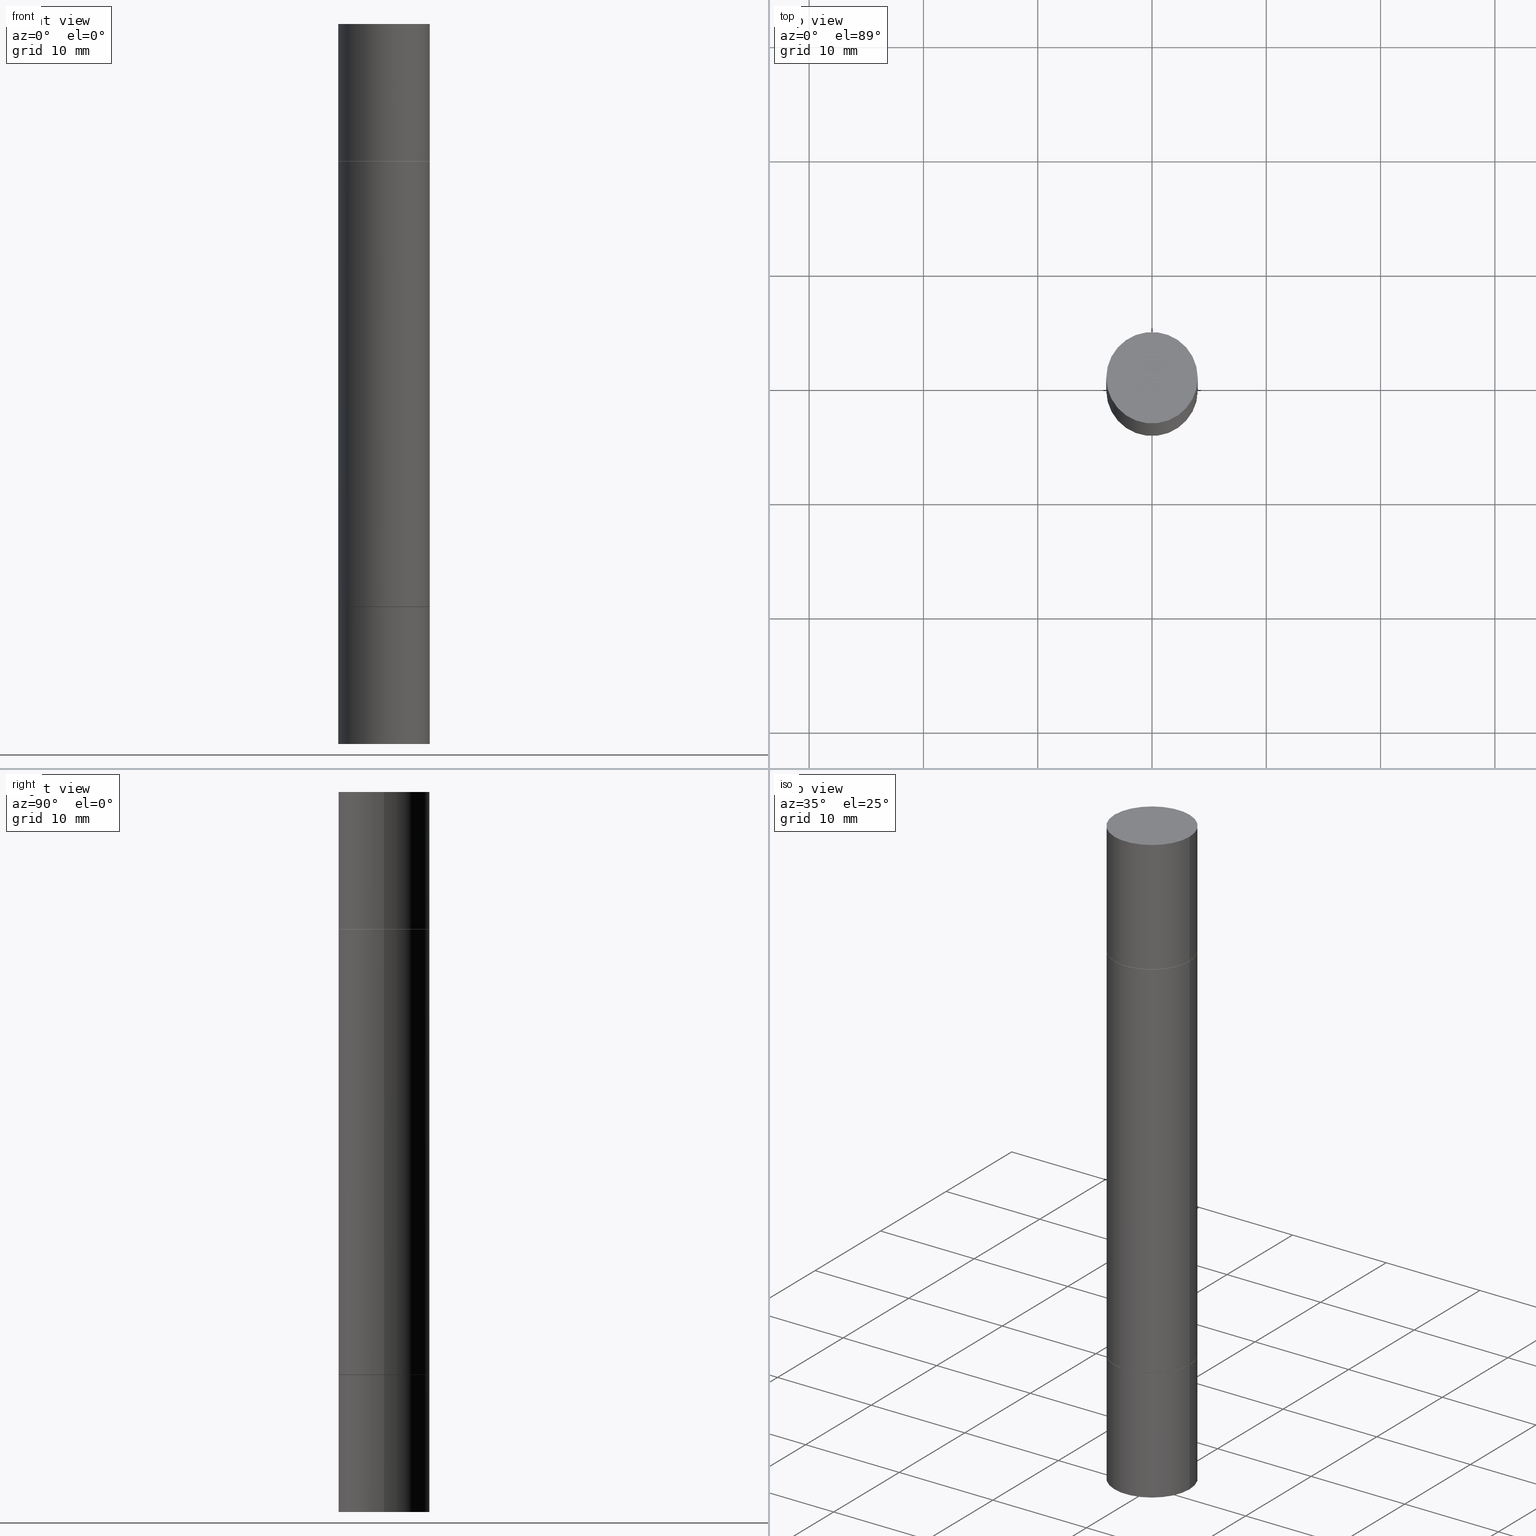
[diagram: canonical four-view strip — front | top / right | iso, engineering-drawing reading convention]
A machine part, canonical four-view strip (front | top / right | iso — engineering-drawing reading convention). The complete STEP part file that produces these views, byte-faithful:
ISO-10303-21;
HEADER;
FILE_DESCRIPTION (( 'STEP AP203' ),
    '1' );
FILE_NAME ('41549.STEP',
    '2024-03-04T15:46:09',
    ( '' ),
    ( '' ),
    'SwSTEP 2.0',
    'SolidWorks 2023',
    '' );
FILE_SCHEMA (( 'CONFIG_CONTROL_DESIGN' ));
ENDSEC;

DATA;
#1 = DIRECTION ( 'NONE',  ( 1.000000000000000000, -6.982962677686268288E-15, 0.000000000000000000 ) ) ;
#2 = MANIFOLD_SOLID_BREP ( 'Combine1', #70 ) ;
#3 = AXIS2_PLACEMENT_3D ( 'NONE', #26, #36, #31 ) ;
#4 = ORIENTED_EDGE ( 'NONE', *, *, #9, .T. ) ;
#5 = CARTESIAN_POINT ( 'NONE',  ( -0.1575000000000000011, -6.716128463675745525E-15, -2.007900000000000240 ) ) ;
#6 = ORIENTED_EDGE ( 'NONE', *, *, #613, .F. ) ;
#7 = DIRECTION ( 'NONE',  ( -2.445468806185136877E-29, -3.492890411551753071E-15, -1.000000000000000000 ) ) ;
#8 = CYLINDRICAL_SURFACE ( 'NONE', #338, 0.1575000000000000011 ) ;
#9 = EDGE_CURVE ( 'NONE', #265, #199, #38, .T. ) ;
#10 = CIRCLE ( 'NONE', #260, 0.1575000000000000011 ) ;
#11 = EDGE_CURVE ( 'NONE', #631, #280, #253, .T. ) ;
#12 = DIRECTION ( 'NONE',  ( -2.445468806185136597E-29, 3.491481338843145583E-15, 1.000000000000000000 ) ) ;
#13 = EDGE_CURVE ( 'NONE', #483, #509, #336, .T. ) ;
#14 = DIRECTION ( 'NONE',  ( -2.445468806185136597E-29, -3.492890411551752677E-15, -1.000000000000000000 ) ) ;
#15 = ORIENTED_EDGE ( 'NONE', *, *, #572, .F. ) ;
#16 = AXIS2_PLACEMENT_3D ( 'NONE', #353, #95, #575 ) ;
#17 = DIRECTION ( 'NONE',  ( -1.000000000000000000, 6.982962677686265922E-15, -9.839502134516470631E-33 ) ) ;
#18 = CARTESIAN_POINT ( 'NONE',  ( 0.000000000000000000, -8.661668626252231138E-15, -2.480299999999999727 ) ) ;
#19 = EDGE_CURVE ( 'NONE', #199, #499, #577, .T. ) ;
#20 = DIRECTION ( 'NONE',  ( -2.445468806185136877E-29, -3.492890411551753071E-15, -1.000000000000000000 ) ) ;
#21 = ORIENTED_EDGE ( 'NONE', *, *, #522, .T. ) ;
#22 = LENGTH_MEASURE_WITH_UNIT ( LENGTH_MEASURE( 0.02539999999999999897 ), #314 );
#23 = VERTEX_POINT ( 'NONE', #430 ) ;
#24 = DIRECTION ( 'NONE',  ( 1.000000000000000000, -6.982962677686267499E-15, 0.000000000000000000 ) ) ;
#25 = EDGE_CURVE ( 'NONE', #499, #199, #623, .T. ) ;
#26 = CARTESIAN_POINT ( 'NONE',  ( 1.099816621735647434E-15, 0.1574999999999999456, 0.000000000000000000 ) ) ;
#27 = ORIENTED_EDGE ( 'NONE', *, *, #249, .F. ) ;
#28 = ORIENTED_EDGE ( 'NONE', *, *, #328, .F. ) ;
#29 = DIRECTION ( 'NONE',  ( 2.438088387897960049E-29, -3.491481338843145188E-15, -1.000000000000000000 ) ) ;
#30 = CONICAL_SURFACE ( 'NONE', #16, 0.1565000000000000002, 0.7853981633972775267 ) ;
#31 = DIRECTION ( 'NONE',  ( -1.000000000000000000, 6.982962677686265922E-15, -9.839502134516470631E-33 ) ) ;
#32 = ORIENTED_EDGE ( 'NONE', *, *, #206, .F. ) ;
#33 = CIRCLE ( 'NONE', #71, 0.1575000000000000011 ) ;
#34 = CARTESIAN_POINT ( 'NONE',  ( 4.910256815939136991E-29, -7.010545380263154077E-15, -2.007900000000000240 ) ) ;
#35 = PLANE ( 'NONE',  #350 ) ;
#36 = DIRECTION ( 'NONE',  ( 2.438088387897959769E-29, 3.492890411551753071E-15, 1.000000000000000000 ) ) ;
#37 = EDGE_LOOP ( 'NONE', ( #161, #361 ) ) ;
#38 = LINE ( 'NONE', #171, #470 ) ;
#39 = CARTESIAN_POINT ( 'NONE',  ( -0.1575000000000000011, 2.572551809600735932E-16, -0.4723999999999995980 ) ) ;
#40 = LINE ( 'NONE', #668, #99 ) ;
#41 = ORIENTED_EDGE ( 'NONE', *, *, #212, .F. ) ;
#42 = UNCERTAINTY_MEASURE_WITH_UNIT (LENGTH_MEASURE( 1.000000000000000082E-05 ), #526, 'distance_accuracy_value', 'NONE');
#43 = AXIS2_PLACEMENT_3D ( 'NONE', #76, #87, #603 ) ;
#44 = CARTESIAN_POINT ( 'NONE',  ( 6.065496279980994755E-29, 1.747461519580534218E-18, 5.463695987328526437E-16 ) ) ;
#45 = CALENDAR_DATE ( 2024, 4, 3 ) ;
#46 = CARTESIAN_POINT ( 'NONE',  ( -0.1565000000000000002, -5.746260322462221211E-16, -0.4723999999999993205 ) ) ;
#47 = CARTESIAN_POINT ( 'NONE',  ( -0.1565000000000000002, -5.893247544450374291E-15, -2.007900000000000240 ) ) ;
#48 = DIRECTION ( 'NONE',  ( 1.000000000000000000, -6.982962677686267499E-15, 0.000000000000000000 ) ) ;
#49 = APPROVAL_DATE_TIME ( #146, #494 ) ;
#50 = EDGE_CURVE ( 'NONE', #631, #493, #653, .T. ) ;
#51 = DIRECTION ( 'NONE',  ( -2.445468806185136597E-29, -3.492890411551752677E-15, -1.000000000000000000 ) ) ;
#52 = ORIENTED_EDGE ( 'NONE', *, *, #9, .F. ) ;
#53 = CALENDAR_DATE ( 2024, 4, 3 ) ;
#54 = ADVANCED_FACE ( 'NONE', ( #606 ), #327, .T. ) ;
#55 = AXIS2_PLACEMENT_3D ( 'NONE', #306, #351, #58 ) ;
#56 = AXIS2_PLACEMENT_3D ( 'NONE', #102, #143, #518 ) ;
#57 = EDGE_CURVE ( 'NONE', #650, #499, #126, .T. ) ;
#58 = DIRECTION ( 'NONE',  ( 0.000000000000000000, 1.000000000000000000, -3.469013325287955660E-15 ) ) ;
#59 = CC_DESIGN_PERSON_AND_ORGANIZATION_ASSIGNMENT ( #271, #259, ( #396 ) ) ;
#60 = ORIENTED_EDGE ( 'NONE', *, *, #528, .T. ) ;
#61 = EDGE_LOOP ( 'NONE', ( #32, #369, #658, #52 ) ) ;
#62 = APPLICATION_PROTOCOL_DEFINITION ( 'international standard', 'config_control_design', 1994, #400 ) ;
#63 = ORIENTED_EDGE ( 'NONE', *, *, #170, .T. ) ;
#64 = EDGE_CURVE ( 'NONE', #426, #138, #132, .T. ) ;
#65 = DIRECTION ( 'NONE',  ( 1.000000000000000000, -6.982962677686261977E-15, 0.000000000000000000 ) ) ;
#66 = CARTESIAN_POINT ( 'NONE',  ( 0.1565000000000000002, -2.741127627955367656E-15, -0.4723999999999993205 ) ) ;
#67 = ORIENTED_EDGE ( 'NONE', *, *, #498, .F. ) ;
#68 = DIRECTION ( 'NONE',  ( 1.000000000000000000, 0.000000000000000000, 0.000000000000000000 ) ) ;
#69 = DIRECTION ( 'NONE',  ( -2.445468806185136597E-29, -3.492890411551752677E-15, -1.000000000000000000 ) ) ;
#70 = CLOSED_SHELL ( 'NONE', ( #368, #290, #151, #578, #362, #97, #666, #542 ) ) ;
#71 = AXIS2_PLACEMENT_3D ( 'NONE', #208, #529, #65 ) ;
#72 = COORDINATED_UNIVERSAL_TIME_OFFSET ( 5, 0, .BEHIND. ) ;
#73 = DIRECTION ( 'NONE',  ( 0.7071067811864267805, -7.407546758113824138E-15, -0.7071067811866682540 ) ) ;
#74 = DIRECTION ( 'NONE',  ( 2.438088387897959769E-29, 3.492890411551753071E-15, 1.000000000000000000 ) ) ;
#75 = ORIENTED_EDGE ( 'NONE', *, *, #11, .T. ) ;
#76 = CARTESIAN_POINT ( 'NONE',  ( 4.907811347132950827E-29, -1.651786859309018332E-15, -0.4733999999999996544 ) ) ;
#77 = FACE_OUTER_BOUND ( 'NONE', #174, .T. ) ;
#78 = CARTESIAN_POINT ( 'NONE',  ( 0.1575000000000000011, -2.748110590633054853E-15, -0.4723999999999995980 ) ) ;
#79 = ORIENTED_EDGE ( 'NONE', *, *, #357, .F. ) ;
#80 = ORIENTED_EDGE ( 'NONE', *, *, #160, .F. ) ;
#81 = DIRECTION ( 'NONE',  ( -2.445468806185136597E-29, -3.492890411551752677E-15, -1.000000000000000000 ) ) ;
#82 = VECTOR ( 'NONE', #289, 39.37007874015748143 ) ;
#83 = CIRCLE ( 'NONE', #358, 0.1575000000000000011 ) ;
#84 = LINE ( 'NONE', #130, #82 ) ;
#85 = ORIENTED_EDGE ( 'NONE', *, *, #154, .T. ) ;
#86 = PRODUCT_DEFINITION_FORMATION_WITH_SPECIFIED_SOURCE ( 'ANY', '', #396, .NOT_KNOWN. ) ;
#87 = DIRECTION ( 'NONE',  ( 2.445468806185136597E-29, 3.492890411551752677E-15, 1.000000000000000000 ) ) ;
#88 = CARTESIAN_POINT ( 'NONE',  ( 6.065496279980994755E-29, 1.747461519580534218E-18, 5.463695987328526437E-16 ) ) ;
#89 = DIRECTION ( 'NONE',  ( 1.000000000000000000, -6.982962677686265922E-15, 0.000000000000000000 ) ) ;
#90 = EDGE_LOOP ( 'NONE', ( #28, #574, #63, #270 ) ) ;
#91 = ADVANCED_FACE ( 'NONE', ( #291 ), #236, .T. ) ;
#92 = DIRECTION ( 'NONE',  ( 2.445468806185136597E-29, 3.492890411551752677E-15, 1.000000000000000000 ) ) ;
#93 = FACE_OUTER_BOUND ( 'NONE', #627, .T. ) ;
#94 = AXIS2_PLACEMENT_3D ( 'NONE', #401, #620, #141 ) ;
#95 = DIRECTION ( 'NONE',  ( -2.445468806185136597E-29, -3.492890411551752677E-15, -1.000000000000000000 ) ) ;
#96 = ORIENTED_EDGE ( 'NONE', *, *, #337, .F. ) ;
#97 = ADVANCED_FACE ( 'NONE', ( #112 ), #537, .T. ) ;
#98 = CARTESIAN_POINT ( 'NONE',  ( 0.1575000000000000011, -1.098069160216006353E-15, 5.463695987328526437E-16 ) ) ;
#99 = VECTOR ( 'NONE', #497, 39.37007874015748143 ) ;
#100 = EDGE_LOOP ( 'NONE', ( #131, #334 ) ) ;
#101 = CONICAL_SURFACE ( 'NONE', #466, 0.1565000000000000002, 0.7853981633972775267 ) ;
#102 = CARTESIAN_POINT ( 'NONE',  ( 4.910256815939136991E-29, -1.648293968897466781E-15, -0.4723999999999993205 ) ) ;
#103 = PERSON_AND_ORGANIZATION_ROLE ( 'creator' ) ;
#104 = ORIENTED_EDGE ( 'NONE', *, *, #64, .F. ) ;
#105 = CARTESIAN_POINT ( 'NONE',  ( 4.910256815939136991E-29, -1.648293968897466781E-15, -0.4723999999999993205 ) ) ;
#106 = AXIS2_PLACEMENT_3D ( 'NONE', #117, #489, #543 ) ;
#107 = CONICAL_SURFACE ( 'NONE', #553, 0.1565000000000000002, 0.7853981633972775267 ) ;
#108 = CARTESIAN_POINT ( 'NONE',  ( 0.1565000000000000002, -2.741127627955367656E-15, -0.4723999999999993205 ) ) ;
#109 = LINE ( 'NONE', #412, #588 ) ;
#110 = ORIENTED_EDGE ( 'NONE', *, *, #522, .F. ) ;
#111 = ADVANCED_FACE ( 'NONE', ( #459 ), #200, .T. ) ;
#112 = FACE_OUTER_BOUND ( 'NONE', #90, .T. ) ;
#113 = CLOSED_SHELL ( 'NONE', ( #54, #464, #435, #272, #659, #663 ) ) ;
#114 = AXIS2_PLACEMENT_3D ( 'NONE', #243, #451, #405 ) ;
#115 = CIRCLE ( 'NONE', #56, 0.1565000000000000002 ) ;
#116 = PLANE ( 'NONE',  #610 ) ;
#117 = CARTESIAN_POINT ( 'NONE',  ( 4.907811347132950827E-29, -1.651786859309018332E-15, -0.4733999999999996544 ) ) ;
#118 = CARTESIAN_POINT ( 'NONE',  ( 0.1565000000000000002, -8.103379039321054754E-15, -2.007900000000000240 ) ) ;
#119 = DIRECTION ( 'NONE',  ( 1.000000000000000000, -6.982962677686265922E-15, 9.839502134516470631E-33 ) ) ;
#120 = ORIENTED_EDGE ( 'NONE', *, *, #212, .T. ) ;
#121 = ORIENTED_EDGE ( 'NONE', *, *, #498, .T. ) ;
#122 = CARTESIAN_POINT ( 'NONE',  ( 0.000000000000000000, 0.000000000000000000, -1.240149999999999864 ) ) ;
#123 = EDGE_CURVE ( 'NONE', #592, #201, #156, .T. ) ;
#124 = DIRECTION ( 'NONE',  ( 0.7071067811864267805, -7.407546758113824138E-15, -0.7071067811866682540 ) ) ;
#125 = ORIENTED_EDGE ( 'NONE', *, *, #328, .T. ) ;
#126 = LINE ( 'NONE', #179, #635 ) ;
#127 = CARTESIAN_POINT ( 'NONE',  ( 0.000000000000000000, -8.661668626252231138E-15, -2.480299999999999727 ) ) ;
#128 = CIRCLE ( 'NONE', #465, 0.1574999999999998901 ) ;
#129 = AXIS2_PLACEMENT_3D ( 'NONE', #621, #352, #571 ) ;
#130 = CARTESIAN_POINT ( 'NONE',  ( -0.1575000000000000011, -7.581140191603215359E-15, -2.480299999999999727 ) ) ;
#131 = ORIENTED_EDGE ( 'NONE', *, *, #512, .F. ) ;
#132 = LINE ( 'NONE', #341, #649 ) ;
#133 = FACE_OUTER_BOUND ( 'NONE', #398, .T. ) ;
#134 = DIRECTION ( 'NONE',  ( 1.000000000000000000, -6.982962677686267499E-15, 0.000000000000000000 ) ) ;
#135 = APPROVAL_ROLE ( '' ) ;
#136 = EDGE_CURVE ( 'NONE', #280, #631, #403, .T. ) ;
#137 = CARTESIAN_POINT ( 'NONE',  ( 4.910256815939136991E-29, -1.648293968897466781E-15, -0.4723999999999993205 ) ) ;
#138 = VERTEX_POINT ( 'NONE', #5 ) ;
#139 = COORDINATED_UNIVERSAL_TIME_OFFSET ( 5, 0, .BEHIND. ) ;
#140 = VECTOR ( 'NONE', #348, 39.37007874015748143 ) ;
#141 = DIRECTION ( 'NONE',  ( 1.000000000000000000, -6.982962677686267499E-15, 0.000000000000000000 ) ) ;
#142 = APPROVAL_PERSON_ORGANIZATION ( #316, #238, #641 ) ;
#143 = DIRECTION ( 'NONE',  ( 2.445468806185136597E-29, 3.492890411551752677E-15, 1.000000000000000000 ) ) ;
#144 = VERTEX_POINT ( 'NONE', #294 ) ;
#145 = EDGE_LOOP ( 'NONE', ( #576, #303, #410, #557 ) ) ;
#146 = DATE_AND_TIME ( #45, #184 ) ;
#147 = FACE_OUTER_BOUND ( 'NONE', #61, .T. ) ;
#148 = DIRECTION ( 'NONE',  ( 2.445468806185136597E-29, 3.492890411551752677E-15, 1.000000000000000000 ) ) ;
#149 = AXIS2_PLACEMENT_3D ( 'NONE', #175, #436, #664 ) ;
#150 = AXIS2_PLACEMENT_3D ( 'NONE', #667, #239, #452 ) ;
#151 = ADVANCED_FACE ( 'NONE', ( #147 ), #30, .T. ) ;
#152 = VERTEX_POINT ( 'NONE', #98 ) ;
#153 = COORDINATED_UNIVERSAL_TIME_OFFSET ( 5, 0, .BEHIND. ) ;
#154 = EDGE_CURVE ( 'NONE', #495, #280, #345, .T. ) ;
#155 = APPROVAL_STATUS ( 'not_yet_approved' ) ;
#156 = CIRCLE ( 'NONE', #94, 0.1565000000000000002 ) ;
#157 = AXIS2_PLACEMENT_3D ( 'NONE', #225, #69, #656 ) ;
#158 = EDGE_CURVE ( 'NONE', #493, #444, #283, .T. ) ;
#159 = LINE ( 'NONE', #167, #375 ) ;
#160 = EDGE_CURVE ( 'NONE', #573, #23, #256, .T. ) ;
#161 = ORIENTED_EDGE ( 'NONE', *, *, #445, .T. ) ;
#162 = DIRECTION ( 'NONE',  ( 1.000000000000000000, -6.982962677686265922E-15, 0.000000000000000000 ) ) ;
#163 = CYLINDRICAL_SURFACE ( 'NONE', #267, 0.1574999999999998901 ) ;
#164 = PERSON_AND_ORGANIZATION ( #648, #284 ) ;
#165 = DIRECTION ( 'NONE',  ( 2.445468806185136597E-29, 3.492890411551752677E-15, 1.000000000000000000 ) ) ;
#166 = DIRECTION ( 'NONE',  ( -2.445468806185136597E-29, 3.491481338843145583E-15, 1.000000000000000000 ) ) ;
#167 = CARTESIAN_POINT ( 'NONE',  ( 0.1575000000000000011, -1.099816621735586889E-15, 7.679978421878598033E-30 ) ) ;
#168 = AXIS2_PLACEMENT_3D ( 'NONE', #44, #188, #506 ) ;
#169 = DIRECTION ( 'NONE',  ( 2.445468806185136597E-29, 3.492890411551752677E-15, 1.000000000000000000 ) ) ;
#170 = EDGE_CURVE ( 'NONE', #199, #552, #563, .T. ) ;
#171 = CARTESIAN_POINT ( 'NONE',  ( 0.1565000000000000002, -2.741127627955367656E-15, -0.4723999999999993205 ) ) ;
#172 = CARTESIAN_POINT ( 'NONE',  ( -0.1575000000000000011, -6.716128463675745525E-15, -2.480300000000000171 ) ) ;
#173 = PLANE ( 'NONE',  #3 ) ;
#174 = EDGE_LOOP ( 'NONE', ( #80, #642, #216, #471 ) ) ;
#175 = CARTESIAN_POINT ( 'NONE',  ( 0.000000000000000000, -8.661668626252231138E-15, -2.480299999999999727 ) ) ;
#176 = CC_DESIGN_PERSON_AND_ORGANIZATION_ASSIGNMENT ( #678, #344, ( #323 ) ) ;
#177 = CYLINDRICAL_SURFACE ( 'NONE', #367, 0.1575000000000000011 ) ;
#178 = CARTESIAN_POINT ( 'NONE',  ( 4.910256815939136430E-29, -1.648293968897467768E-15, -0.4723999999999995980 ) ) ;
#179 = CARTESIAN_POINT ( 'NONE',  ( -0.1565000000000000002, -5.746260322462221211E-16, -0.4723999999999993205 ) ) ;
#180 = DIRECTION ( 'NONE',  ( 1.000000000000000000, -6.982962677686268288E-15, 0.000000000000000000 ) ) ;
#181 = CIRCLE ( 'NONE', #296, 0.1575000000000000011 ) ;
#182 = CONICAL_SURFACE ( 'NONE', #196, 0.1565000000000000002, 0.7853981633972775267 ) ;
#183 = DIRECTION ( 'NONE',  ( 1.000000000000000000, -6.982962677686268288E-15, 0.000000000000000000 ) ) ;
#184 = LOCAL_TIME ( 10, 46, 9.000000000000000000, #625 ) ;
#185 = DIRECTION ( 'NONE',  ( 2.438088387897959769E-29, 3.492890411551753071E-15, 1.000000000000000000 ) ) ;
#186 = DIRECTION ( 'NONE',  ( -2.445468806185136597E-29, 3.491481338843145583E-15, 1.000000000000000000 ) ) ;
#187 = PLANE ( 'NONE',  #241 ) ;
#188 = DIRECTION ( 'NONE',  ( 2.445468806185136597E-29, 3.492890411551752677E-15, 1.000000000000000000 ) ) ;
#189 = PERSON_AND_ORGANIZATION_ROLE ( 'creator' ) ;
#190 = DIRECTION ( 'NONE',  ( 1.000000000000000000, -6.982962677686261189E-15, 0.000000000000000000 ) ) ;
#191 = ORIENTED_EDGE ( 'NONE', *, *, #357, .T. ) ;
#192 = DATE_TIME_ROLE ( 'classification_date' ) ;
#193 = CLOSED_SHELL ( 'NONE', ( #582, #339, #288, #111 ) ) ;
#194 = CIRCLE ( 'NONE', #168, 0.1575000000000000011 ) ;
#195 = VECTOR ( 'NONE', #302, 39.37007874015748143 ) ;
#196 = AXIS2_PLACEMENT_3D ( 'NONE', #264, #12, #520 ) ;
#197 = EDGE_CURVE ( 'NONE', #144, #138, #551, .T. ) ;
#198 = APPROVAL_PERSON_ORGANIZATION ( #633, #482, #135 ) ;
#199 = VERTEX_POINT ( 'NONE', #502 ) ;
#200 = CYLINDRICAL_SURFACE ( 'NONE', #114, 0.1575000000000000011 ) ;
#201 = VERTEX_POINT ( 'NONE', #674 ) ;
#202 = CARTESIAN_POINT ( 'NONE',  ( 0.000000000000000000, 0.000000000000000000, 0.000000000000000000 ) ) ;
#203 = EDGE_LOOP ( 'NONE', ( #428, #191 ) ) ;
#204 = EDGE_CURVE ( 'NONE', #573, #152, #194, .T. ) ;
#205 = VECTOR ( 'NONE', #248, 39.37007874015748143 ) ;
#206 = EDGE_CURVE ( 'NONE', #650, #265, #503, .T. ) ;
#207 = ADVANCED_BREP_SHAPE_REPRESENTATION ( '41549', ( #671, #440, #419, #675, #2, #524 ), #305 ) ;
#208 = CARTESIAN_POINT ( 'NONE',  ( 6.065496279980994755E-29, -8.659921164732655335E-15, -2.480300000000000171 ) ) ;
#209 = ADVANCED_FACE ( 'NONE', ( #246 ), #570, .T. ) ;
#210 = DIRECTION ( 'NONE',  ( 0.000000000000000000, 0.000000000000000000, 1.000000000000000000 ) ) ;
#211 = AXIS2_PLACEMENT_3D ( 'NONE', #508, #51, #1 ) ;
#212 = EDGE_CURVE ( 'NONE', #638, #631, #413, .T. ) ;
#213 = AXIS2_PLACEMENT_3D ( 'NONE', #549, #81, #24 ) ;
#214 = FACE_OUTER_BOUND ( 'NONE', #644, .T. ) ;
#215 = CARTESIAN_POINT ( 'NONE',  ( 1.099816621735635798E-15, 0.1574999999999930067, -2.007900000000000684 ) ) ;
#216 = ORIENTED_EDGE ( 'NONE', *, *, #677, .T. ) ;
#217 = APPLICATION_CONTEXT ( 'configuration controlled 3d designs of mechanical parts and assemblies' ) ;
#218 = DIRECTION ( 'NONE',  ( 2.445468806185136597E-29, 3.492890411551752677E-15, 1.000000000000000000 ) ) ;
#219 = EDGE_CURVE ( 'NONE', #514, #509, #279, .T. ) ;
#220 = DIRECTION ( 'NONE',  ( 1.000000000000000000, -6.982962677686268288E-15, 0.000000000000000000 ) ) ;
#221 = ORIENTED_EDGE ( 'NONE', *, *, #318, .F. ) ;
#222 = SECURITY_CLASSIFICATION_LEVEL ( 'unclassified' ) ;
#223 = ORIENTED_EDGE ( 'NONE', *, *, #318, .T. ) ;
#224 = DIRECTION ( 'NONE',  ( -2.445468806185136597E-29, -3.492890411551752677E-15, -1.000000000000000000 ) ) ;
#225 = CARTESIAN_POINT ( 'NONE',  ( 0.000000000000000000, -8.661668626252231138E-15, -2.480299999999999727 ) ) ;
#226 = AXIS2_PLACEMENT_3D ( 'NONE', #235, #443, #183 ) ;
#227 = CONICAL_SURFACE ( 'NONE', #624, 0.1565000000000000002, 0.7853981633972775267 ) ;
#228 = CARTESIAN_POINT ( 'NONE',  ( 3.032748139990496817E-29, -4.329960582366326879E-15, -1.240149999999999864 ) ) ;
#229 = ORIENTED_EDGE ( 'NONE', *, *, #622, .F. ) ;
#230 = DIRECTION ( 'NONE',  ( 2.445468806185136597E-29, 3.492890411551752677E-15, 1.000000000000000000 ) ) ;
#231 = CARTESIAN_POINT ( 'NONE',  ( 4.910256815939136991E-29, -7.010545380263154077E-15, -2.007900000000000240 ) ) ;
#232 = ORIENTED_EDGE ( 'NONE', *, *, #411, .F. ) ;
#233 = DIRECTION ( 'NONE',  ( -2.445468806185136877E-29, -3.492890411551753071E-15, -1.000000000000000000 ) ) ;
#234 = FACE_OUTER_BOUND ( 'NONE', #100, .T. ) ;
#235 = CARTESIAN_POINT ( 'NONE',  ( 4.910256815939136430E-29, -7.010545380263152499E-15, -2.007900000000000240 ) ) ;
#236 = PLANE ( 'NONE',  #456 ) ;
#237 = DIRECTION ( 'NONE',  ( -2.445468806185136597E-29, 3.491481338843145583E-15, 1.000000000000000000 ) ) ;
#238 = APPROVAL ( #416, 'UNSPECIFIED' ) ;
#239 = DIRECTION ( 'NONE',  ( 2.445468806185136597E-29, 3.492890411551752677E-15, 1.000000000000000000 ) ) ;
#240 = PRODUCT_DEFINITION_SHAPE ( 'NONE', 'NONE',  #615 ) ;
#241 = AXIS2_PLACEMENT_3D ( 'NONE', #394, #565, #399 ) ;
#242 = CC_DESIGN_APPROVAL ( #494, ( #323 ) ) ;
#243 = CARTESIAN_POINT ( 'NONE',  ( 0.000000000000000000, 0.000000000000000000, 0.000000000000000000 ) ) ;
#244 = CARTESIAN_POINT ( 'NONE',  ( -0.1574999999999998901, -7.581140191603216936E-15, -2.480299999999999727 ) ) ;
#245 = COORDINATED_UNIVERSAL_TIME_OFFSET ( 5, 0, .BEHIND. ) ;
#246 = FACE_OUTER_BOUND ( 'NONE', #145, .T. ) ;
#247 = DIRECTION ( 'NONE',  ( -0.7071067811864267805, 7.493145998869918709E-15, 0.7071067811866682540 ) ) ;
#248 = DIRECTION ( 'NONE',  ( -2.445468806185136877E-29, -3.492890411551753071E-15, -1.000000000000000000 ) ) ;
#249 = EDGE_CURVE ( 'NONE', #434, #23, #534, .T. ) ;
#250 = DATE_AND_TIME ( #429, #525 ) ;
#251 = ADVANCED_FACE ( 'NONE', ( #324 ), #173, .T. ) ;
#252 = EDGE_LOOP ( 'NONE', ( #261, #597 ) ) ;
#253 = CIRCLE ( 'NONE', #43, 0.1575000000000000011 ) ;
#254 = AXIS2_PLACEMENT_3D ( 'NONE', #34, #186, #485 ) ;
#255 = ORIENTED_EDGE ( 'NONE', *, *, #572, .T. ) ;
#256 = LINE ( 'NONE', #462, #595 ) ;
#257 = EDGE_CURVE ( 'NONE', #444, #493, #128, .T. ) ;
#258 = EDGE_LOOP ( 'NONE', ( #27, #15 ) ) ;
#259 = PERSON_AND_ORGANIZATION_ROLE ( 'design_owner' ) ;
#260 = AXIS2_PLACEMENT_3D ( 'NONE', #88, #218, #89 ) ;
#261 = ORIENTED_EDGE ( 'NONE', *, *, #158, .T. ) ;
#262 = CIRCLE ( 'NONE', #254, 0.1565000000000000002 ) ;
#263 = DATE_AND_TIME ( #584, #298 ) ;
#264 = CARTESIAN_POINT ( 'NONE',  ( 4.910256815939136991E-29, -7.010545380263154077E-15, -2.007900000000000240 ) ) ;
#265 = VERTEX_POINT ( 'NONE', #386 ) ;
#266 = ORIENTED_EDGE ( 'NONE', *, *, #630, .T. ) ;
#267 = AXIS2_PLACEMENT_3D ( 'NONE', #550, #596, #371 ) ;
#268 = CC_DESIGN_APPROVAL ( #238, ( #615 ) ) ;
#269 = LOCAL_TIME ( 10, 46, 9.000000000000000000, #245 ) ;
#270 = ORIENTED_EDGE ( 'NONE', *, *, #395, .T. ) ;
#271 = PERSON_AND_ORGANIZATION ( #648, #284 ) ;
#272 = ADVANCED_FACE ( 'NONE', ( #546 ), #601, .F. ) ;
#273 = CARTESIAN_POINT ( 'NONE',  ( 0.1574999999999998901, -9.761485247987817829E-15, -2.480299999999999727 ) ) ;
#274 = DIRECTION ( 'NONE',  ( -1.000000000000000000, 6.982962677686265922E-15, -9.839502134516470631E-33 ) ) ;
#275 = ORIENTED_EDGE ( 'NONE', *, *, #622, .T. ) ;
#276 = ORIENTED_EDGE ( 'NONE', *, *, #411, .T. ) ;
#277 = DIRECTION ( 'NONE',  ( -2.445468806185136597E-29, -3.492890411551752677E-15, -1.000000000000000000 ) ) ;
#278 = FACE_OUTER_BOUND ( 'NONE', #378, .T. ) ;
#279 = LINE ( 'NONE', #486, #586 ) ;
#280 = VERTEX_POINT ( 'NONE', #418 ) ;
#281 = DIRECTION ( 'NONE',  ( 1.000000000000000000, -6.982962677686268288E-15, 0.000000000000000000 ) ) ;
#282 = DIRECTION ( 'NONE',  ( 1.000000000000000000, -6.982962677686261977E-15, 0.000000000000000000 ) ) ;
#283 = CIRCLE ( 'NONE', #55, 0.1574999999999998901 ) ;
#284 = ORGANIZATION ( 'UNSPECIFIED', 'UNSPECIFIED', '' ) ;
#285 = ORIENTED_EDGE ( 'NONE', *, *, #57, .F. ) ;
#286 = ORIENTED_EDGE ( 'NONE', *, *, #158, .F. ) ;
#287 = DIRECTION ( 'NONE',  ( 1.000000000000000000, -6.982962677686267499E-15, 0.000000000000000000 ) ) ;
#288 = ADVANCED_FACE ( 'NONE', ( #330 ), #608, .F. ) ;
#289 = DIRECTION ( 'NONE',  ( -2.445468806185136877E-29, -3.492890411551753071E-15, -1.000000000000000000 ) ) ;
#290 = ADVANCED_FACE ( 'NONE', ( #438 ), #163, .T. ) ;
#291 = FACE_OUTER_BOUND ( 'NONE', #203, .T. ) ;
#292 = EDGE_LOOP ( 'NONE', ( #295, #223 ) ) ;
#293 = FACE_OUTER_BOUND ( 'NONE', #355, .T. ) ;
#294 = CARTESIAN_POINT ( 'NONE',  ( 0.1575000000000000011, -8.110362001998739191E-15, -2.007900000000000240 ) ) ;
#295 = ORIENTED_EDGE ( 'NONE', *, *, #197, .T. ) ;
#296 = AXIS2_PLACEMENT_3D ( 'NONE', #342, #237, #655 ) ;
#297 = CIRCLE ( 'NONE', #672, 0.1575000000000000011 ) ;
#298 = LOCAL_TIME ( 10, 46, 9.000000000000000000, #153 ) ;
#299 = DIRECTION ( 'NONE',  ( 1.000000000000000000, -6.982962677686267499E-15, 0.000000000000000000 ) ) ;
#300 = ORIENTED_EDGE ( 'NONE', *, *, #50, .T. ) ;
#301 = EDGE_CURVE ( 'NONE', #484, #483, #84, .T. ) ;
#302 = DIRECTION ( 'NONE',  ( -0.7071067811864267805, 2.381258160590016583E-15, -0.7071067811866682540 ) ) ;
#303 = ORIENTED_EDGE ( 'NONE', *, *, #517, .F. ) ;
#304 = AXIS2_PLACEMENT_3D ( 'NONE', #384, #230, #388 ) ;
#305 =( GEOMETRIC_REPRESENTATION_CONTEXT ( 3 ) GLOBAL_UNCERTAINTY_ASSIGNED_CONTEXT ( ( #42 ) ) GLOBAL_UNIT_ASSIGNED_CONTEXT ( ( #526, #590, #425 ) ) REPRESENTATION_CONTEXT ( 'NONE', 'WORKASPACE' ) );
#306 = CARTESIAN_POINT ( 'NONE',  ( 3.032748139990496817E-29, -4.329960582366326879E-15, -1.240149999999999864 ) ) ;
#307 = ORIENTED_EDGE ( 'NONE', *, *, #19, .T. ) ;
#308 = CC_DESIGN_DATE_AND_TIME_ASSIGNMENT ( #263, #469, ( #615 ) ) ;
#309 = CYLINDRICAL_SURFACE ( 'NONE', #391, 0.1574999999999998901 ) ;
#310 = DIRECTION ( 'NONE',  ( 1.000000000000000000, -6.982962677686261189E-15, 0.000000000000000000 ) ) ;
#311 = ADVANCED_FACE ( 'NONE', ( #319 ), #116, .F. ) ;
#312 = CARTESIAN_POINT ( 'NONE',  ( -0.1575000000000000011, -5.712584246600035385E-16, -0.4733999999999996544 ) ) ;
#313 = ADVANCED_FACE ( 'NONE', ( #214 ), #640, .F. ) ;
#314 =( LENGTH_UNIT ( ) NAMED_UNIT ( * ) SI_UNIT ( $, .METRE. ) );
#315 = EDGE_LOOP ( 'NONE', ( #359, #60, #286, #408 ) ) ;
#316 = PERSON_AND_ORGANIZATION ( #648, #284 ) ;
#317 = CYLINDRICAL_SURFACE ( 'NONE', #157, 0.1575000000000000011 ) ;
#318 = EDGE_CURVE ( 'NONE', #138, #144, #523, .T. ) ;
#319 = FACE_OUTER_BOUND ( 'NONE', #258, .T. ) ;
#320 = EDGE_LOOP ( 'NONE', ( #285, #6, #4, #307 ) ) ;
#321 = CARTESIAN_POINT ( 'NONE',  ( 0.000000000000000000, 0.000000000000000000, 0.000000000000000000 ) ) ;
#322 = EDGE_LOOP ( 'NONE', ( #229, #424, #373, #96 ) ) ;
#323 = SECURITY_CLASSIFICATION ( '', '', #222 ) ;
#324 = FACE_OUTER_BOUND ( 'NONE', #37, .T. ) ;
#325 = EDGE_LOOP ( 'NONE', ( #632, #125, #468, #535 ) ) ;
#326 = PERSON_AND_ORGANIZATION_ROLE ( 'design_supplier' ) ;
#327 = CYLINDRICAL_SURFACE ( 'NONE', #149, 0.1574999999999998901 ) ;
#328 = EDGE_CURVE ( 'NONE', #499, #441, #40, .T. ) ;
#329 = DIRECTION ( 'NONE',  ( -2.445468806185136597E-29, 3.491481338843145583E-15, 1.000000000000000000 ) ) ;
#330 = FACE_OUTER_BOUND ( 'NONE', #292, .T. ) ;
#331 = ORIENTED_EDGE ( 'NONE', *, *, #219, .F. ) ;
#332 = CARTESIAN_POINT ( 'NONE',  ( 4.910256815939136430E-29, -1.648293968897467768E-15, -0.4723999999999995980 ) ) ;
#333 = ORIENTED_EDGE ( 'NONE', *, *, #11, .F. ) ;
#334 = ORIENTED_EDGE ( 'NONE', *, *, #472, .F. ) ;
#335 = DIRECTION ( 'NONE',  ( 0.000000000000000000, 1.000000000000000000, -3.492185875197449524E-15 ) ) ;
#336 = CIRCLE ( 'NONE', #628, 0.1575000000000000011 ) ;
#337 = EDGE_CURVE ( 'NONE', #441, #552, #181, .T. ) ;
#338 = AXIS2_PLACEMENT_3D ( 'NONE', #202, #579, #507 ) ;
#339 = ADVANCED_FACE ( 'NONE', ( #234 ), #376, .T. ) ;
#340 = CARTESIAN_POINT ( 'NONE',  ( 1.099816621735635798E-15, 0.1574999999999983635, -0.4724000000000001531 ) ) ;
#341 = CARTESIAN_POINT ( 'NONE',  ( -0.1575000000000000011, 1.119104808822157801E-15, -7.747322767151475583E-30 ) ) ;
#342 = CARTESIAN_POINT ( 'NONE',  ( 4.907811347132950827E-29, -7.007053898924308703E-15, -2.006899999999999906 ) ) ;
#343 = LINE ( 'NONE', #244, #205 ) ;
#344 = PERSON_AND_ORGANIZATION_ROLE ( 'classification_officer' ) ;
#345 = LINE ( 'NONE', #46, #195 ) ;
#346 = CARTESIAN_POINT ( 'NONE',  ( 4.907811347132950827E-29, -7.007053898924308703E-15, -2.006899999999999906 ) ) ;
#347 = APPROVAL_STATUS ( 'not_yet_approved' ) ;
#348 = DIRECTION ( 'NONE',  ( -2.445468806185136877E-29, -3.492890411551753071E-15, -1.000000000000000000 ) ) ;
#349 = AXIS2_PLACEMENT_3D ( 'NONE', #540, #74, #274 ) ;
#350 = AXIS2_PLACEMENT_3D ( 'NONE', #555, #614, #560 ) ;
#351 = DIRECTION ( 'NONE',  ( -0.000000000000000000, -3.492185875197449130E-15, -1.000000000000000000 ) ) ;
#352 = DIRECTION ( 'NONE',  ( 2.445468806185136597E-29, 3.492890411551752677E-15, 1.000000000000000000 ) ) ;
#353 = CARTESIAN_POINT ( 'NONE',  ( 4.910256815939136991E-29, -1.648293968897466781E-15, -0.4723999999999993205 ) ) ;
#354 = ORIENTED_EDGE ( 'NONE', *, *, #64, .T. ) ;
#355 = EDGE_LOOP ( 'NONE', ( #276, #275, #583, #580 ) ) ;
#356 = AXIS2_PLACEMENT_3D ( 'NONE', #137, #567, #299 ) ;
#357 = EDGE_CURVE ( 'NONE', #484, #514, #10, .T. ) ;
#358 = AXIS2_PLACEMENT_3D ( 'NONE', #564, #427, #612 ) ;
#359 = ORIENTED_EDGE ( 'NONE', *, *, #136, .F. ) ;
#360 = CC_DESIGN_PERSON_AND_ORGANIZATION_ASSIGNMENT ( #450, #326, ( #86 ) ) ;
#361 = ORIENTED_EDGE ( 'NONE', *, *, #204, .T. ) ;
#362 = ADVANCED_FACE ( 'NONE', ( #442 ), #107, .T. ) ;
#363 = DIRECTION ( 'NONE',  ( -2.445468806185136877E-29, -3.492890411551753071E-15, -1.000000000000000000 ) ) ;
#364 = CLOSED_SHELL ( 'NONE', ( #475, #91, #313, #209 ) ) ;
#365 = AXIS2_PLACEMENT_3D ( 'NONE', #215, #433, #423 ) ;
#366 = CARTESIAN_POINT ( 'NONE',  ( -0.1565000000000000002, -5.729422284531128791E-16, -0.4723999999999993205 ) ) ;
#367 = AXIS2_PLACEMENT_3D ( 'NONE', #432, #277, #180 ) ;
#368 = ADVANCED_FACE ( 'NONE', ( #293 ), #227, .T. ) ;
#369 = ORIENTED_EDGE ( 'NONE', *, *, #57, .T. ) ;
#370 = APPROVAL_DATE_TIME ( #581, #238 ) ;
#371 = DIRECTION ( 'NONE',  ( 1.000000000000000000, -6.982962677686261189E-15, 0.000000000000000000 ) ) ;
#372 = CLOSED_SHELL ( 'NONE', ( #510, #251, #311, #407 ) ) ;
#373 = ORIENTED_EDGE ( 'NONE', *, *, #406, .T. ) ;
#374 = AXIS2_PLACEMENT_3D ( 'NONE', #679, #453, #190 ) ;
#375 = VECTOR ( 'NONE', #591, 39.37007874015748143 ) ;
#376 = PLANE ( 'NONE',  #569 ) ;
#377 = DIRECTION ( 'NONE',  ( -0.000000000000000000, -3.492185875197449130E-15, -1.000000000000000000 ) ) ;
#378 = EDGE_LOOP ( 'NONE', ( #568, #645, #255, #383 ) ) ;
#379 = PRODUCT_RELATED_PRODUCT_CATEGORY ( 'detail', '', ( #396 ) ) ;
#380 = ORIENTED_EDGE ( 'NONE', *, *, #257, .F. ) ;
#381 = FACE_OUTER_BOUND ( 'NONE', #252, .T. ) ;
#382 = DIRECTION ( 'NONE',  ( 0.000000000000000000, 1.000000000000000000, -3.469013325287955660E-15 ) ) ;
#383 = ORIENTED_EDGE ( 'NONE', *, *, #677, .F. ) ;
#384 = CARTESIAN_POINT ( 'NONE',  ( 4.907811347132950827E-29, -1.651786859309018332E-15, -0.4733999999999996544 ) ) ;
#385 = CYLINDRICAL_SURFACE ( 'NONE', #431, 0.1575000000000000011 ) ;
#386 = CARTESIAN_POINT ( 'NONE',  ( 0.1565000000000000002, -2.741127627955367656E-15, -0.4723999999999993205 ) ) ;
#387 = VERTEX_POINT ( 'NONE', #393 ) ;
#388 = DIRECTION ( 'NONE',  ( 1.000000000000000000, -6.982962677686268288E-15, 0.000000000000000000 ) ) ;
#389 = VECTOR ( 'NONE', #124, 39.37007874015748143 ) ;
#390 = CARTESIAN_POINT ( 'NONE',  ( -0.1575000000000000011, 2.572551809600735932E-16, 5.463695987328556019E-16 ) ) ;
#391 = AXIS2_PLACEMENT_3D ( 'NONE', #18, #14, #310 ) ;
#392 = CARTESIAN_POINT ( 'NONE',  ( 0.1574999999999998901, -9.761485247987817829E-15, -2.480299999999999727 ) ) ;
#393 = CARTESIAN_POINT ( 'NONE',  ( 0.1575000000000000011, -9.759737786468242027E-15, -2.480300000000000171 ) ) ;
#394 = CARTESIAN_POINT ( 'NONE',  ( 4.910256815939136430E-29, -1.648293968897467768E-15, -0.4723999999999995980 ) ) ;
#395 = EDGE_CURVE ( 'NONE', #552, #441, #297, .T. ) ;
#396 = PRODUCT ( '41549', '41549', '', ( #414 ) ) ;
#397 = CARTESIAN_POINT ( 'NONE',  ( 4.910256815939136430E-29, -7.010545380263152499E-15, -2.007900000000000240 ) ) ;
#398 = EDGE_LOOP ( 'NONE', ( #110, #85, #439, #41 ) ) ;
#399 = DIRECTION ( 'NONE',  ( 1.000000000000000000, -6.982962677686265922E-15, 9.839502134516470631E-33 ) ) ;
#400 = APPLICATION_CONTEXT ( 'configuration controlled 3d designs of mechanical parts and assemblies' ) ;
#401 = CARTESIAN_POINT ( 'NONE',  ( 4.910256815939136991E-29, -7.010545380263154077E-15, -2.007900000000000240 ) ) ;
#402 = LINE ( 'NONE', #463, #598 ) ;
#403 = CIRCLE ( 'NONE', #447, 0.1575000000000000011 ) ;
#404 = CIRCLE ( 'NONE', #652, 0.1565000000000000002 ) ;
#405 = DIRECTION ( 'NONE',  ( 1.000000000000000000, -6.982962677686265922E-15, 4.876176775795935232E-29 ) ) ;
#406 = EDGE_CURVE ( 'NONE', #201, #552, #544, .T. ) ;
#407 = ADVANCED_FACE ( 'NONE', ( #77 ), #177, .T. ) ;
#408 = ORIENTED_EDGE ( 'NONE', *, *, #50, .F. ) ;
#409 = CIRCLE ( 'NONE', #536, 0.1575000000000000011 ) ;
#410 = ORIENTED_EDGE ( 'NONE', *, *, #219, .T. ) ;
#411 = EDGE_CURVE ( 'NONE', #201, #592, #262, .T. ) ;
#412 = CARTESIAN_POINT ( 'NONE',  ( 0.1575000000000000011, -9.761485247987819407E-15, -2.480299999999999727 ) ) ;
#413 = LINE ( 'NONE', #108, #389 ) ;
#414 = MECHANICAL_CONTEXT ( 'NONE', #217, 'mechanical' ) ;
#415 = AXIS2_PLACEMENT_3D ( 'NONE', #178, #169, #220 ) ;
#416 = APPROVAL_STATUS ( 'not_yet_approved' ) ;
#417 = VECTOR ( 'NONE', #673, 39.37007874015748143 ) ;
#418 = CARTESIAN_POINT ( 'NONE',  ( -0.1575000000000000011, -5.712584246600035385E-16, -0.4733999999999996544 ) ) ;
#419 = MANIFOLD_SOLID_BREP ( 'Mirror1[3]', #372 ) ;
#420 = CARTESIAN_POINT ( 'NONE',  ( 0.1575000000000000011, -2.751603481044606995E-15, -0.4733999999999996544 ) ) ;
#421 = EDGE_LOOP ( 'NONE', ( #547, #532 ) ) ;
#422 = CARTESIAN_POINT ( 'NONE',  ( 0.1575000000000000011, -1.098069160216006353E-15, 5.463695987328526437E-16 ) ) ;
#423 = DIRECTION ( 'NONE',  ( -1.000000000000000000, 6.982962677686265922E-15, -4.876176775795935793E-29 ) ) ;
#424 = ORIENTED_EDGE ( 'NONE', *, *, #123, .T. ) ;
#425 =( NAMED_UNIT ( * ) SI_UNIT ( $, .STERADIAN. ) SOLID_ANGLE_UNIT ( ) );
#426 = VERTEX_POINT ( 'NONE', #172 ) ;
#427 = DIRECTION ( 'NONE',  ( 2.445468806185136597E-29, 3.492890411551752677E-15, 1.000000000000000000 ) ) ;
#428 = ORIENTED_EDGE ( 'NONE', *, *, #517, .T. ) ;
#429 = CALENDAR_DATE ( 2024, 4, 3 ) ;
#430 = CARTESIAN_POINT ( 'NONE',  ( -0.1575000000000000011, 2.572551809600735932E-16, -0.4723999999999995980 ) ) ;
#431 = AXIS2_PLACEMENT_3D ( 'NONE', #127, #607, #554 ) ;
#432 = CARTESIAN_POINT ( 'NONE',  ( 0.000000000000000000, -8.661668626252231138E-15, -2.480299999999999727 ) ) ;
#433 = DIRECTION ( 'NONE',  ( 2.438088387897960049E-29, -3.491481338843145188E-15, -1.000000000000000000 ) ) ;
#434 = VERTEX_POINT ( 'NONE', #559 ) ;
#435 = ADVANCED_FACE ( 'NONE', ( #381 ), #604, .F. ) ;
#436 = DIRECTION ( 'NONE',  ( -2.445468806185136597E-29, -3.492890411551752677E-15, -1.000000000000000000 ) ) ;
#437 = CARTESIAN_POINT ( 'NONE',  ( 1.099816621735647434E-15, 0.1574999999999913136, -2.480300000000001059 ) ) ;
#438 = FACE_OUTER_BOUND ( 'NONE', #325, .T. ) ;
#439 = ORIENTED_EDGE ( 'NONE', *, *, #136, .T. ) ;
#440 = MANIFOLD_SOLID_BREP ( 'Mirror1[1]', #113 ) ;
#441 = VERTEX_POINT ( 'NONE', #500 ) ;
#442 = FACE_OUTER_BOUND ( 'NONE', #320, .T. ) ;
#443 = DIRECTION ( 'NONE',  ( -2.445468806185136597E-29, 3.491481338843145583E-15, 1.000000000000000000 ) ) ;
#444 = VERTEX_POINT ( 'NONE', #665 ) ;
#445 = EDGE_CURVE ( 'NONE', #152, #573, #83, .T. ) ;
#446 = CARTESIAN_POINT ( 'NONE',  ( 4.910256815939136991E-29, -1.648293968897466781E-15, -0.4723999999999993205 ) ) ;
#447 = AXIS2_PLACEMENT_3D ( 'NONE', #516, #148, #618 ) ;
#448 = FACE_OUTER_BOUND ( 'NONE', #421, .T. ) ;
#449 = CONICAL_SURFACE ( 'NONE', #213, 0.1565000000000000002, 0.7853981633972775267 ) ;
#450 = PERSON_AND_ORGANIZATION ( #648, #284 ) ;
#451 = DIRECTION ( 'NONE',  ( -2.445468806185136597E-29, 3.491481338843145583E-15, 1.000000000000000000 ) ) ;
#452 = DIRECTION ( 'NONE',  ( 1.000000000000000000, -6.982962677686268288E-15, 0.000000000000000000 ) ) ;
#453 = DIRECTION ( 'NONE',  ( -2.445468806185136597E-29, -3.492890411551752677E-15, -1.000000000000000000 ) ) ;
#454 = PERSON_AND_ORGANIZATION ( #648, #284 ) ;
#455 = DIRECTION ( 'NONE',  ( 1.000000000000000000, -6.982962677686268288E-15, 0.000000000000000000 ) ) ;
#456 = AXIS2_PLACEMENT_3D ( 'NONE', #670, #185, #594 ) ;
#457 = CIRCLE ( 'NONE', #515, 0.1575000000000000011 ) ;
#458 = EDGE_CURVE ( 'NONE', #509, #483, #409, .T. ) ;
#459 = FACE_OUTER_BOUND ( 'NONE', #609, .T. ) ;
#460 = ORIENTED_EDGE ( 'NONE', *, *, #154, .F. ) ;
#461 = ORIENTED_EDGE ( 'NONE', *, *, #13, .F. ) ;
#462 = CARTESIAN_POINT ( 'NONE',  ( -0.1575000000000000011, -7.581140191603215359E-15, -2.480299999999999727 ) ) ;
#463 = CARTESIAN_POINT ( 'NONE',  ( -0.1565000000000000002, -5.898545998798597482E-15, -2.007900000000000240 ) ) ;
#464 = ADVANCED_FACE ( 'NONE', ( #133 ), #449, .T. ) ;
#465 = AXIS2_PLACEMENT_3D ( 'NONE', #228, #377, #382 ) ;
#466 = AXIS2_PLACEMENT_3D ( 'NONE', #105, #533, #473 ) ;
#467 = CALENDAR_DATE ( 2024, 4, 3 ) ;
#468 = ORIENTED_EDGE ( 'NONE', *, *, #337, .T. ) ;
#469 = DATE_TIME_ROLE ( 'creation_date' ) ;
#470 = VECTOR ( 'NONE', #73, 39.37007874015748143 ) ;
#471 = ORIENTED_EDGE ( 'NONE', *, *, #249, .T. ) ;
#472 = EDGE_CURVE ( 'NONE', #426, #387, #457, .T. ) ;
#473 = DIRECTION ( 'NONE',  ( 1.000000000000000000, -6.982962677686267499E-15, 0.000000000000000000 ) ) ;
#474 = LOCAL_TIME ( 10, 46, 9.000000000000000000, #72 ) ;
#475 = ADVANCED_FACE ( 'NONE', ( #492 ), #385, .T. ) ;
#476 = CARTESIAN_POINT ( 'NONE',  ( 6.065496279980994755E-29, 1.747461519580534218E-18, 5.463695987328526437E-16 ) ) ;
#477 = DIRECTION ( 'NONE',  ( -2.438088387897959769E-29, -3.492890411551753071E-15, -1.000000000000000000 ) ) ;
#478 = EDGE_LOOP ( 'NONE', ( #79, #487, #626, #331 ) ) ;
#479 = FACE_OUTER_BOUND ( 'NONE', #599, .T. ) ;
#480 = ORIENTED_EDGE ( 'NONE', *, *, #123, .F. ) ;
#481 = DIRECTION ( 'NONE',  ( 1.000000000000000000, -6.982962677686268288E-15, 0.000000000000000000 ) ) ;
#482 = APPROVAL ( #155, 'UNSPECIFIED' ) ;
#483 = VERTEX_POINT ( 'NONE', #39 ) ;
#484 = VERTEX_POINT ( 'NONE', #634 ) ;
#485 = DIRECTION ( 'NONE',  ( 1.000000000000000000, -6.982962677686267499E-15, 0.000000000000000000 ) ) ;
#486 = CARTESIAN_POINT ( 'NONE',  ( 0.1575000000000000011, -9.761485247987819407E-15, -2.480299999999999727 ) ) ;
#487 = ORIENTED_EDGE ( 'NONE', *, *, #301, .T. ) ;
#488 = AXIS2_PLACEMENT_3D ( 'NONE', #397, #616, #455 ) ;
#489 = DIRECTION ( 'NONE',  ( 2.445468806185136597E-29, 3.492890411551752677E-15, 1.000000000000000000 ) ) ;
#490 = VECTOR ( 'NONE', #233, 39.37007874015748143 ) ;
#491 = AXIS2_PLACEMENT_3D ( 'NONE', #122, #617, #335 ) ;
#492 = FACE_OUTER_BOUND ( 'NONE', #478, .T. ) ;
#493 = VERTEX_POINT ( 'NONE', #545 ) ;
#494 = APPROVAL ( #347, 'UNSPECIFIED' ) ;
#495 = VERTEX_POINT ( 'NONE', #647 ) ;
#496 = DIRECTION ( 'NONE',  ( 1.000000000000000000, -6.982962677686268288E-15, 0.000000000000000000 ) ) ;
#497 = DIRECTION ( 'NONE',  ( -2.445468806185136877E-29, -3.492890411551753071E-15, -1.000000000000000000 ) ) ;
#498 = EDGE_CURVE ( 'NONE', #387, #144, #159, .T. ) ;
#499 = VERTEX_POINT ( 'NONE', #312 ) ;
#500 = CARTESIAN_POINT ( 'NONE',  ( -0.1575000000000000011, -3.249432147717308339E-15, -2.006899999999999906 ) ) ;
#501 = CARTESIAN_POINT ( 'NONE',  ( 0.1575000000000000011, -8.106870520659896184E-15, -2.006899999999999906 ) ) ;
#502 = CARTESIAN_POINT ( 'NONE',  ( 0.1575000000000000011, -2.751603481044606995E-15, -0.4733999999999996544 ) ) ;
#503 = CIRCLE ( 'NONE', #356, 0.1565000000000000002 ) ;
#504 = DIRECTION ( 'NONE',  ( 2.445468806185136597E-29, 3.492890411551752677E-15, 1.000000000000000000 ) ) ;
#505 = CIRCLE ( 'NONE', #129, 0.1565000000000000002 ) ;
#506 = DIRECTION ( 'NONE',  ( 1.000000000000000000, -6.982962677686265922E-15, 0.000000000000000000 ) ) ;
#507 = DIRECTION ( 'NONE',  ( 1.000000000000000000, -6.982962677686265922E-15, 4.876176775795935232E-29 ) ) ;
#508 = CARTESIAN_POINT ( 'NONE',  ( 0.000000000000000000, -8.661668626252231138E-15, -2.480299999999999727 ) ) ;
#509 = VERTEX_POINT ( 'NONE', #78 ) ;
#510 = ADVANCED_FACE ( 'NONE', ( #278 ), #317, .T. ) ;
#511 = APPROVAL_DATE_TIME ( #566, #482 ) ;
#512 = EDGE_CURVE ( 'NONE', #387, #426, #33, .T. ) ;
#513 = ORIENTED_EDGE ( 'NONE', *, *, #528, .F. ) ;
#514 = VERTEX_POINT ( 'NONE', #422 ) ;
#515 = AXIS2_PLACEMENT_3D ( 'NONE', #646, #166, #282 ) ;
#516 = CARTESIAN_POINT ( 'NONE',  ( 4.907811347132950827E-29, -1.651786859309018332E-15, -0.4733999999999996544 ) ) ;
#517 = EDGE_CURVE ( 'NONE', #514, #484, #629, .T. ) ;
#518 = DIRECTION ( 'NONE',  ( 1.000000000000000000, -6.982962677686267499E-15, 0.000000000000000000 ) ) ;
#519 = DIMENSIONAL_EXPONENTS ( 1.000000000000000000, 0.000000000000000000, 0.000000000000000000, 0.000000000000000000, 0.000000000000000000, 0.000000000000000000, 0.000000000000000000 ) ;
#520 = DIRECTION ( 'NONE',  ( 1.000000000000000000, -6.982962677686267499E-15, 0.000000000000000000 ) ) ;
#521 = ORIENTED_EDGE ( 'NONE', *, *, #197, .F. ) ;
#522 = EDGE_CURVE ( 'NONE', #495, #638, #404, .T. ) ;
#523 = CIRCLE ( 'NONE', #226, 0.1575000000000000011 ) ;
#524 = AXIS2_PLACEMENT_3D ( 'NONE', #321, #210, #68 ) ;
#525 = LOCAL_TIME ( 10, 46, 9.000000000000000000, #139 ) ;
#526 =( CONVERSION_BASED_UNIT ( 'INCH', #22 ) LENGTH_UNIT ( ) NAMED_UNIT ( #519 ) );
#527 = ORIENTED_EDGE ( 'NONE', *, *, #630, .F. ) ;
#528 = EDGE_CURVE ( 'NONE', #280, #444, #343, .T. ) ;
#529 = DIRECTION ( 'NONE',  ( -2.445468806185136597E-29, 3.491481338843145583E-15, 1.000000000000000000 ) ) ;
#530 = CC_DESIGN_DATE_AND_TIME_ASSIGNMENT ( #250, #192, ( #323 ) ) ;
#531 = APPLICATION_PROTOCOL_DEFINITION ( 'international standard', 'config_control_design', 1994, #217 ) ;
#532 = ORIENTED_EDGE ( 'NONE', *, *, #206, .T. ) ;
#533 = DIRECTION ( 'NONE',  ( -2.445468806185136597E-29, -3.492890411551752677E-15, -1.000000000000000000 ) ) ;
#534 = CIRCLE ( 'NONE', #415, 0.1575000000000000011 ) ;
#535 = ORIENTED_EDGE ( 'NONE', *, *, #170, .F. ) ;
#536 = AXIS2_PLACEMENT_3D ( 'NONE', #332, #92, #481 ) ;
#537 = CYLINDRICAL_SURFACE ( 'NONE', #374, 0.1574999999999998901 ) ;
#538 = APPROVAL_PERSON_ORGANIZATION ( #454, #494, #680 ) ;
#539 = CARTESIAN_POINT ( 'NONE',  ( 4.910256815939136991E-29, -1.648293968897466781E-15, -0.4723999999999993205 ) ) ;
#540 = CARTESIAN_POINT ( 'NONE',  ( 1.099816621735635798E-15, 0.1574999999999983635, -0.4724000000000001531 ) ) ;
#541 = PERSON_AND_ORGANIZATION ( #648, #284 ) ;
#542 = ADVANCED_FACE ( 'NONE', ( #676 ), #35, .F. ) ;
#543 = DIRECTION ( 'NONE',  ( 1.000000000000000000, -6.982962677686268288E-15, 0.000000000000000000 ) ) ;
#544 = LINE ( 'NONE', #118, #417 ) ;
#545 = CARTESIAN_POINT ( 'NONE',  ( 0.1574999999999998901, -4.090690342573258113E-15, -1.240149999999999864 ) ) ;
#546 = FACE_OUTER_BOUND ( 'NONE', #602, .T. ) ;
#547 = ORIENTED_EDGE ( 'NONE', *, *, #613, .T. ) ;
#548 = CARTESIAN_POINT ( 'NONE',  ( 4.910256815939136430E-29, -1.648293968897467768E-15, -0.4723999999999995980 ) ) ;
#549 = CARTESIAN_POINT ( 'NONE',  ( 4.910256815939136991E-29, -1.648293968897466781E-15, -0.4723999999999993205 ) ) ;
#550 = CARTESIAN_POINT ( 'NONE',  ( 0.000000000000000000, -8.661668626252231138E-15, -2.480299999999999727 ) ) ;
#551 = CIRCLE ( 'NONE', #488, 0.1575000000000000011 ) ;
#552 = VERTEX_POINT ( 'NONE', #501 ) ;
#553 = AXIS2_PLACEMENT_3D ( 'NONE', #446, #224, #287 ) ;
#554 = DIRECTION ( 'NONE',  ( 1.000000000000000000, -6.982962677686268288E-15, 0.000000000000000000 ) ) ;
#555 = CARTESIAN_POINT ( 'NONE',  ( 4.910256815939136430E-29, -7.010545380263152499E-15, -2.007900000000000240 ) ) ;
#556 = DIRECTION ( 'NONE',  ( 2.438088387897959769E-29, 3.492890411551753071E-15, 1.000000000000000000 ) ) ;
#557 = ORIENTED_EDGE ( 'NONE', *, *, #458, .T. ) ;
#558 = DIRECTION ( 'NONE',  ( -2.445468806185136877E-29, 3.491481338843145188E-15, 1.000000000000000000 ) ) ;
#559 = CARTESIAN_POINT ( 'NONE',  ( 0.1575000000000000011, -2.748110590633054853E-15, -0.4723999999999995980 ) ) ;
#560 = DIRECTION ( 'NONE',  ( 1.000000000000000000, -6.982962677686265922E-15, 4.876176775795935793E-29 ) ) ;
#561 = DESIGN_CONTEXT ( 'detailed design', #400, 'design' ) ;
#562 = CC_DESIGN_PERSON_AND_ORGANIZATION_ASSIGNMENT ( #164, #103, ( #615 ) ) ;
#563 = LINE ( 'NONE', #392, #140 ) ;
#564 = CARTESIAN_POINT ( 'NONE',  ( 6.065496279980994755E-29, 1.747461519580534218E-18, 5.463695987328526437E-16 ) ) ;
#565 = DIRECTION ( 'NONE',  ( -2.438088387897959769E-29, -3.492890411551753071E-15, -1.000000000000000000 ) ) ;
#566 = DATE_AND_TIME ( #53, #269 ) ;
#567 = DIRECTION ( 'NONE',  ( 2.445468806185136597E-29, 3.492890411551752677E-15, 1.000000000000000000 ) ) ;
#568 = ORIENTED_EDGE ( 'NONE', *, *, #204, .F. ) ;
#569 = AXIS2_PLACEMENT_3D ( 'NONE', #437, #29, #600 ) ;
#570 = CYLINDRICAL_SURFACE ( 'NONE', #211, 0.1575000000000000011 ) ;
#571 = DIRECTION ( 'NONE',  ( 1.000000000000000000, -6.982962677686267499E-15, 0.000000000000000000 ) ) ;
#572 = EDGE_CURVE ( 'NONE', #23, #434, #587, .T. ) ;
#573 = VERTEX_POINT ( 'NONE', #390 ) ;
#574 = ORIENTED_EDGE ( 'NONE', *, *, #19, .F. ) ;
#575 = DIRECTION ( 'NONE',  ( 1.000000000000000000, -6.982962677686267499E-15, 0.000000000000000000 ) ) ;
#576 = ORIENTED_EDGE ( 'NONE', *, *, #301, .F. ) ;
#577 = CIRCLE ( 'NONE', #106, 0.1575000000000000011 ) ;
#578 = ADVANCED_FACE ( 'NONE', ( #448 ), #187, .F. ) ;
#579 = DIRECTION ( 'NONE',  ( -2.445468806185136597E-29, 3.491481338843145583E-15, 1.000000000000000000 ) ) ;
#580 = ORIENTED_EDGE ( 'NONE', *, *, #406, .F. ) ;
#581 = DATE_AND_TIME ( #467, #474 ) ;
#582 = ADVANCED_FACE ( 'NONE', ( #93 ), #8, .T. ) ;
#583 = ORIENTED_EDGE ( 'NONE', *, *, #395, .F. ) ;
#584 = CALENDAR_DATE ( 2024, 4, 3 ) ;
#585 = CC_DESIGN_PERSON_AND_ORGANIZATION_ASSIGNMENT ( #541, #189, ( #86 ) ) ;
#586 = VECTOR ( 'NONE', #20, 39.37007874015748143 ) ;
#587 = CIRCLE ( 'NONE', #150, 0.1575000000000000011 ) ;
#588 = VECTOR ( 'NONE', #363, 39.37007874015748143 ) ;
#589 = FACE_OUTER_BOUND ( 'NONE', #619, .T. ) ;
#590 =( NAMED_UNIT ( * ) PLANE_ANGLE_UNIT ( ) SI_UNIT ( $, .RADIAN. ) );
#591 = DIRECTION ( 'NONE',  ( -2.445468806185136877E-29, 3.491481338843145188E-15, 1.000000000000000000 ) ) ;
#592 = VERTEX_POINT ( 'NONE', #47 ) ;
#593 = FACE_OUTER_BOUND ( 'NONE', #322, .T. ) ;
#594 = DIRECTION ( 'NONE',  ( -1.000000000000000000, 6.982962677686265922E-15, -9.839502134516470631E-33 ) ) ;
#595 = VECTOR ( 'NONE', #7, 39.37007874015748143 ) ;
#596 = DIRECTION ( 'NONE',  ( -2.445468806185136597E-29, -3.492890411551752677E-15, -1.000000000000000000 ) ) ;
#597 = ORIENTED_EDGE ( 'NONE', *, *, #257, .T. ) ;
#598 = VECTOR ( 'NONE', #247, 39.37007874015748143 ) ;
#599 = EDGE_LOOP ( 'NONE', ( #460, #527, #120, #75 ) ) ;
#600 = DIRECTION ( 'NONE',  ( -1.000000000000000000, 6.982962677686265922E-15, -4.876176775795935793E-29 ) ) ;
#601 = PLANE ( 'NONE',  #669 ) ;
#602 = EDGE_LOOP ( 'NONE', ( #266, #21 ) ) ;
#603 = DIRECTION ( 'NONE',  ( 1.000000000000000000, -6.982962677686268288E-15, 0.000000000000000000 ) ) ;
#604 = PLANE ( 'NONE',  #491 ) ;
#605 = ORIENTED_EDGE ( 'NONE', *, *, #458, .F. ) ;
#606 = FACE_OUTER_BOUND ( 'NONE', #315, .T. ) ;
#607 = DIRECTION ( 'NONE',  ( -2.445468806185136597E-29, -3.492890411551752677E-15, -1.000000000000000000 ) ) ;
#608 = PLANE ( 'NONE',  #365 ) ;
#609 = EDGE_LOOP ( 'NONE', ( #104, #639, #121, #221 ) ) ;
#610 = AXIS2_PLACEMENT_3D ( 'NONE', #340, #556, #17 ) ;
#611 = DIRECTION ( 'NONE',  ( -0.7071067811864267805, 2.381258160590016583E-15, -0.7071067811866682540 ) ) ;
#612 = DIRECTION ( 'NONE',  ( 1.000000000000000000, -6.982962677686265922E-15, 0.000000000000000000 ) ) ;
#613 = EDGE_CURVE ( 'NONE', #265, #650, #115, .T. ) ;
#614 = DIRECTION ( 'NONE',  ( -2.438088387897960049E-29, 3.491481338843145188E-15, 1.000000000000000000 ) ) ;
#615 = PRODUCT_DEFINITION ( 'UNKNOWN', '', #86, #561 ) ;
#616 = DIRECTION ( 'NONE',  ( -2.445468806185136597E-29, 3.491481338843145583E-15, 1.000000000000000000 ) ) ;
#617 = DIRECTION ( 'NONE',  ( 0.000000000000000000, 3.492185875197449524E-15, 1.000000000000000000 ) ) ;
#618 = DIRECTION ( 'NONE',  ( 1.000000000000000000, -6.982962677686268288E-15, 0.000000000000000000 ) ) ;
#619 = EDGE_LOOP ( 'NONE', ( #513, #333, #300, #380 ) ) ;
#620 = DIRECTION ( 'NONE',  ( -2.445468806185136597E-29, 3.491481338843145583E-15, 1.000000000000000000 ) ) ;
#621 = CARTESIAN_POINT ( 'NONE',  ( 4.910256815939136991E-29, -1.648293968897466781E-15, -0.4723999999999993205 ) ) ;
#622 = EDGE_CURVE ( 'NONE', #592, #441, #402, .T. ) ;
#623 = CIRCLE ( 'NONE', #304, 0.1575000000000000011 ) ;
#624 = AXIS2_PLACEMENT_3D ( 'NONE', #231, #661, #134 ) ;
#625 = COORDINATED_UNIVERSAL_TIME_OFFSET ( 5, 0, .BEHIND. ) ;
#626 = ORIENTED_EDGE ( 'NONE', *, *, #13, .T. ) ;
#627 = EDGE_LOOP ( 'NONE', ( #660, #354, #521, #67 ) ) ;
#628 = AXIS2_PLACEMENT_3D ( 'NONE', #548, #165, #281 ) ;
#629 = CIRCLE ( 'NONE', #636, 0.1575000000000000011 ) ;
#630 = EDGE_CURVE ( 'NONE', #638, #495, #505, .T. ) ;
#631 = VERTEX_POINT ( 'NONE', #420 ) ;
#632 = ORIENTED_EDGE ( 'NONE', *, *, #25, .F. ) ;
#633 = PERSON_AND_ORGANIZATION ( #648, #284 ) ;
#634 = CARTESIAN_POINT ( 'NONE',  ( -0.1575000000000000011, 2.572551809600735932E-16, 5.463695987328556019E-16 ) ) ;
#635 = VECTOR ( 'NONE', #611, 39.37007874015748143 ) ;
#636 = AXIS2_PLACEMENT_3D ( 'NONE', #476, #643, #162 ) ;
#637 = CC_DESIGN_APPROVAL ( #482, ( #86 ) ) ;
#638 = VERTEX_POINT ( 'NONE', #66 ) ;
#639 = ORIENTED_EDGE ( 'NONE', *, *, #472, .T. ) ;
#640 = PLANE ( 'NONE',  #349 ) ;
#641 = APPROVAL_ROLE ( '' ) ;
#642 = ORIENTED_EDGE ( 'NONE', *, *, #445, .F. ) ;
#643 = DIRECTION ( 'NONE',  ( 2.445468806185136597E-29, 3.492890411551752677E-15, 1.000000000000000000 ) ) ;
#644 = EDGE_LOOP ( 'NONE', ( #605, #461 ) ) ;
#645 = ORIENTED_EDGE ( 'NONE', *, *, #160, .T. ) ;
#646 = CARTESIAN_POINT ( 'NONE',  ( 6.065496279980994755E-29, -8.659921164732655335E-15, -2.480300000000000171 ) ) ;
#647 = CARTESIAN_POINT ( 'NONE',  ( -0.1565000000000000002, -5.729422284531128791E-16, -0.4723999999999993205 ) ) ;
#648 = PERSON ( 'UNSPECIFIED', 'UNSPECIFIED', 'UNSPECIFIED', ('UNSPECIFIED'), ('UNSPECIFIED'), ('UNSPECIFIED') ) ;
#649 = VECTOR ( 'NONE', #558, 39.37007874015748143 ) ;
#650 = VERTEX_POINT ( 'NONE', #366 ) ;
#651 = SHAPE_DEFINITION_REPRESENTATION ( #240, #207 ) ;
#652 = AXIS2_PLACEMENT_3D ( 'NONE', #539, #504, #48 ) ;
#653 = LINE ( 'NONE', #273, #490 ) ;
#654 = CC_DESIGN_SECURITY_CLASSIFICATION ( #323, ( #86 ) ) ;
#655 = DIRECTION ( 'NONE',  ( 1.000000000000000000, -6.982962677686268288E-15, 0.000000000000000000 ) ) ;
#656 = DIRECTION ( 'NONE',  ( 1.000000000000000000, -6.982962677686268288E-15, 0.000000000000000000 ) ) ;
#657 = CARTESIAN_POINT ( 'NONE',  ( 4.910256815939136430E-29, -1.648293968897467768E-15, -0.4723999999999995980 ) ) ;
#658 = ORIENTED_EDGE ( 'NONE', *, *, #25, .T. ) ;
#659 = ADVANCED_FACE ( 'NONE', ( #479 ), #101, .T. ) ;
#660 = ORIENTED_EDGE ( 'NONE', *, *, #512, .T. ) ;
#661 = DIRECTION ( 'NONE',  ( -2.445468806185136597E-29, 3.491481338843145583E-15, 1.000000000000000000 ) ) ;
#662 = EDGE_LOOP ( 'NONE', ( #232, #480 ) ) ;
#663 = ADVANCED_FACE ( 'NONE', ( #589 ), #309, .T. ) ;
#664 = DIRECTION ( 'NONE',  ( 1.000000000000000000, -6.982962677686261189E-15, 0.000000000000000000 ) ) ;
#665 = CARTESIAN_POINT ( 'NONE',  ( -0.1574999999999998901, -1.910345286188656432E-15, -1.240149999999999864 ) ) ;
#666 = ADVANCED_FACE ( 'NONE', ( #593 ), #182, .T. ) ;
#667 = CARTESIAN_POINT ( 'NONE',  ( 4.910256815939136430E-29, -1.648293968897467768E-15, -0.4723999999999995980 ) ) ;
#668 = CARTESIAN_POINT ( 'NONE',  ( -0.1574999999999998901, -7.581140191603216936E-15, -2.480299999999999727 ) ) ;
#669 = AXIS2_PLACEMENT_3D ( 'NONE', #657, #477, #119 ) ;
#670 = CARTESIAN_POINT ( 'NONE',  ( 1.099816621735647434E-15, 0.1574999999999999456, 0.000000000000000000 ) ) ;
#671 = MANIFOLD_SOLID_BREP ( 'Body-Move/Copy2[1]', #193 ) ;
#672 = AXIS2_PLACEMENT_3D ( 'NONE', #346, #329, #496 ) ;
#673 = DIRECTION ( 'NONE',  ( 0.7071067811864267805, -2.468850131080992517E-15, 0.7071067811866682540 ) ) ;
#674 = CARTESIAN_POINT ( 'NONE',  ( 0.1565000000000000002, -8.103379039321054754E-15, -2.007900000000000240 ) ) ;
#675 = MANIFOLD_SOLID_BREP ( 'Mirror1[4]', #364 ) ;
#676 = FACE_OUTER_BOUND ( 'NONE', #662, .T. ) ;
#677 = EDGE_CURVE ( 'NONE', #152, #434, #109, .T. ) ;
#678 = PERSON_AND_ORGANIZATION ( #648, #284 ) ;
#679 = CARTESIAN_POINT ( 'NONE',  ( 0.000000000000000000, -8.661668626252231138E-15, -2.480299999999999727 ) ) ;
#680 = APPROVAL_ROLE ( '' ) ;
ENDSEC;
END-ISO-10303-21;
